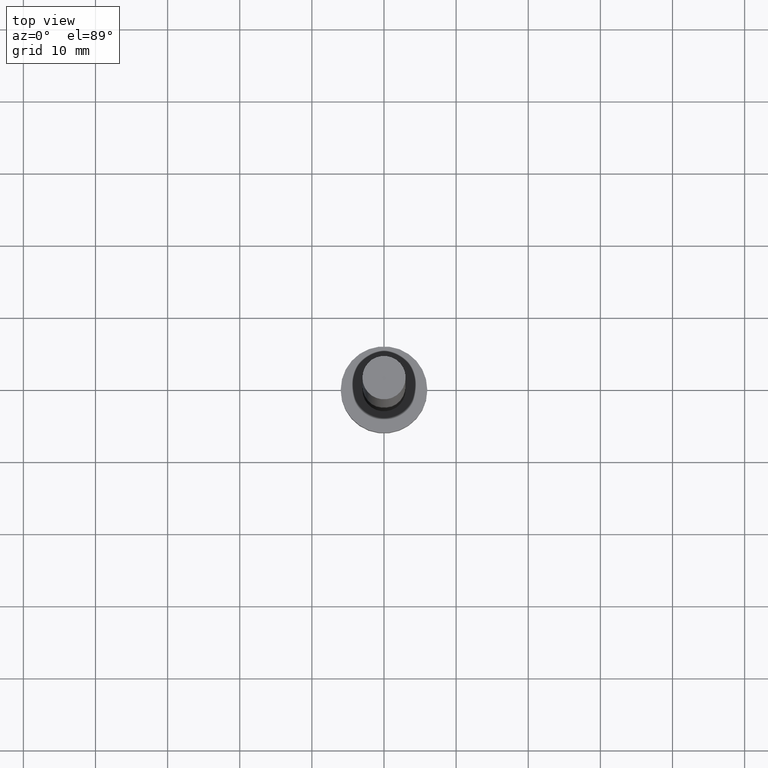
[diagram: clean part render]
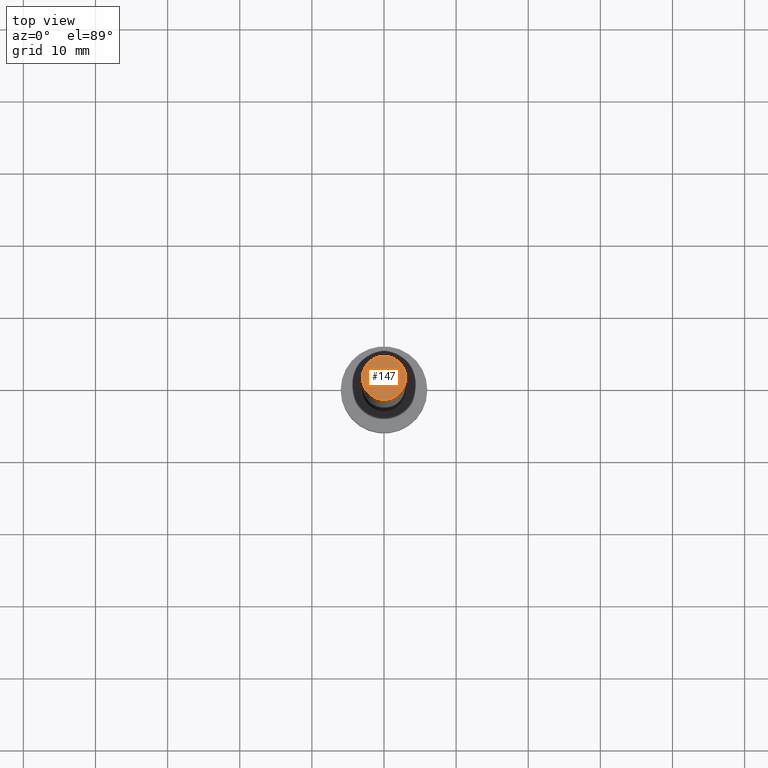
[diagram: same view with one face highlighted and labeled with its STEP entity id]
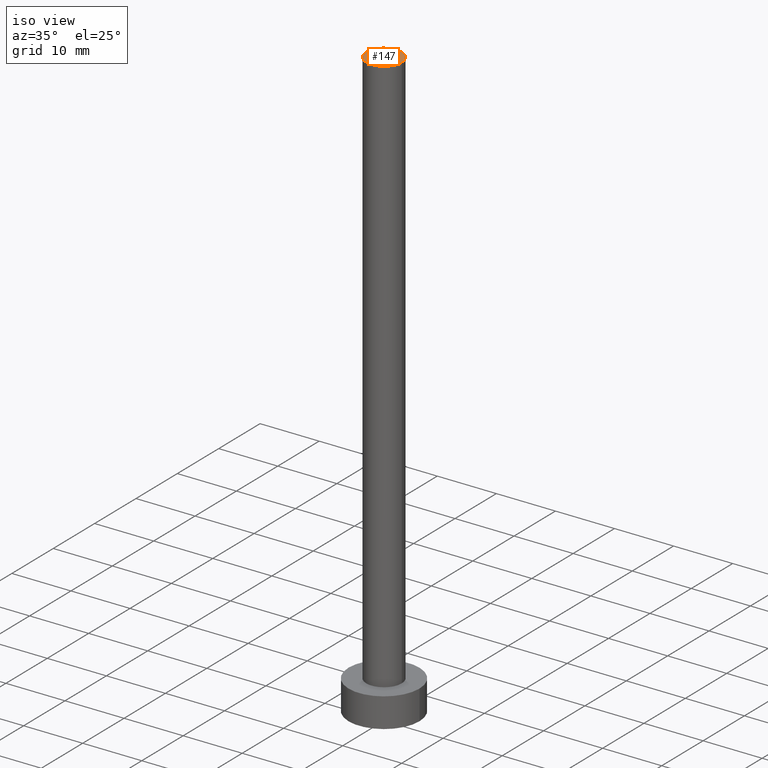
[diagram: same view with one face highlighted and labeled with its STEP entity id]
A machine part, top view. The second image highlights one B-rep face of the part: STEP entity #147.
A second angle (iso view) of the same face is appended — the face is thin or edge-on in the first view.
In plain terms, the highlighted planar face has unit normal (0, 0, 1).
Its self-contained STEP definition (entity closure, byte-faithful):
#17 = CARTESIAN_POINT ( 'NONE',  ( -3.000000000000000444, 0.000000000000000000, 100.0000000000000000 ) ) ;
#21 = EDGE_CURVE ( 'NONE', #166, #163, #65, .T. ) ;
#22 = ORIENTED_EDGE ( 'NONE', *, *, #176, .T. ) ;
#30 = CARTESIAN_POINT ( 'NONE',  ( 0.000000000000000000, 0.000000000000000000, 100.0000000000000000 ) ) ;
#31 = AXIS2_PLACEMENT_3D ( 'NONE', #186, #135, #105 ) ;
#49 = CARTESIAN_POINT ( 'NONE',  ( 3.000000000000000444, 3.673940397442060361E-16, 100.0000000000000000 ) ) ;
#51 = DIRECTION ( 'NONE',  ( 1.000000000000000000, 0.000000000000000000, 0.000000000000000000 ) ) ;
#64 = CARTESIAN_POINT ( 'NONE',  ( 0.000000000000000000, 0.000000000000000000, 100.0000000000000000 ) ) ;
#65 = CIRCLE ( 'NONE', #235, 3.000000000000000444 ) ;
#70 = ORIENTED_EDGE ( 'NONE', *, *, #21, .T. ) ;
#101 = PLANE ( 'NONE',  #31 ) ;
#105 = DIRECTION ( 'NONE',  ( 1.000000000000000000, 0.000000000000000000, -0.000000000000000000 ) ) ;
#119 = CIRCLE ( 'NONE', #128, 3.000000000000000444 ) ;
#128 = AXIS2_PLACEMENT_3D ( 'NONE', #30, #248, #51 ) ;
#131 = DIRECTION ( 'NONE',  ( 1.000000000000000000, 0.000000000000000000, 0.000000000000000000 ) ) ;
#135 = DIRECTION ( 'NONE',  ( 0.000000000000000000, 0.000000000000000000, 1.000000000000000000 ) ) ;
#147 = ADVANCED_FACE ( 'NONE', ( #247 ), #101, .T. ) ;
#152 = DIRECTION ( 'NONE',  ( 0.000000000000000000, 0.000000000000000000, 1.000000000000000000 ) ) ;
#163 = VERTEX_POINT ( 'NONE', #49 ) ;
#166 = VERTEX_POINT ( 'NONE', #17 ) ;
#174 = EDGE_LOOP ( 'NONE', ( #70, #22 ) ) ;
#176 = EDGE_CURVE ( 'NONE', #163, #166, #119, .T. ) ;
#186 = CARTESIAN_POINT ( 'NONE',  ( 0.000000000000000000, 0.000000000000000000, 100.0000000000000000 ) ) ;
#235 = AXIS2_PLACEMENT_3D ( 'NONE', #64, #152, #131 ) ;
#247 = FACE_OUTER_BOUND ( 'NONE', #174, .T. ) ;
#248 = DIRECTION ( 'NONE',  ( 0.000000000000000000, 0.000000000000000000, 1.000000000000000000 ) ) ;